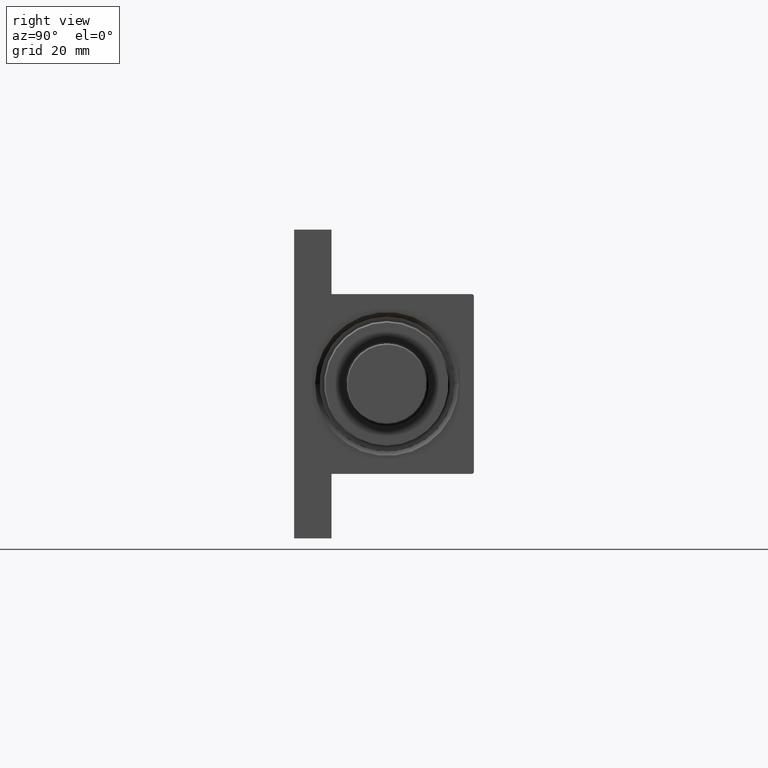
[diagram: clean part render]
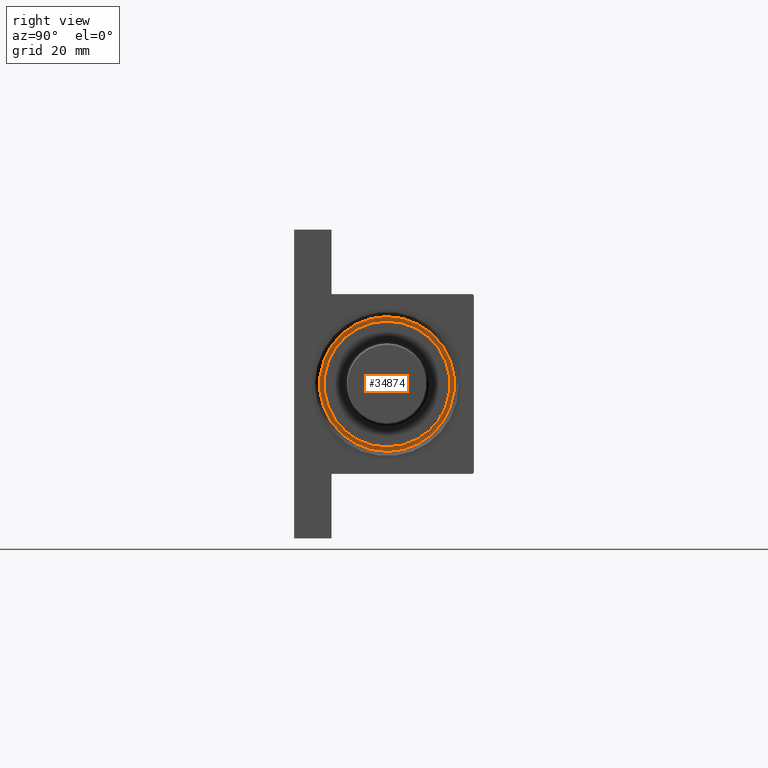
[diagram: same view with one face highlighted and labeled with its STEP entity id]
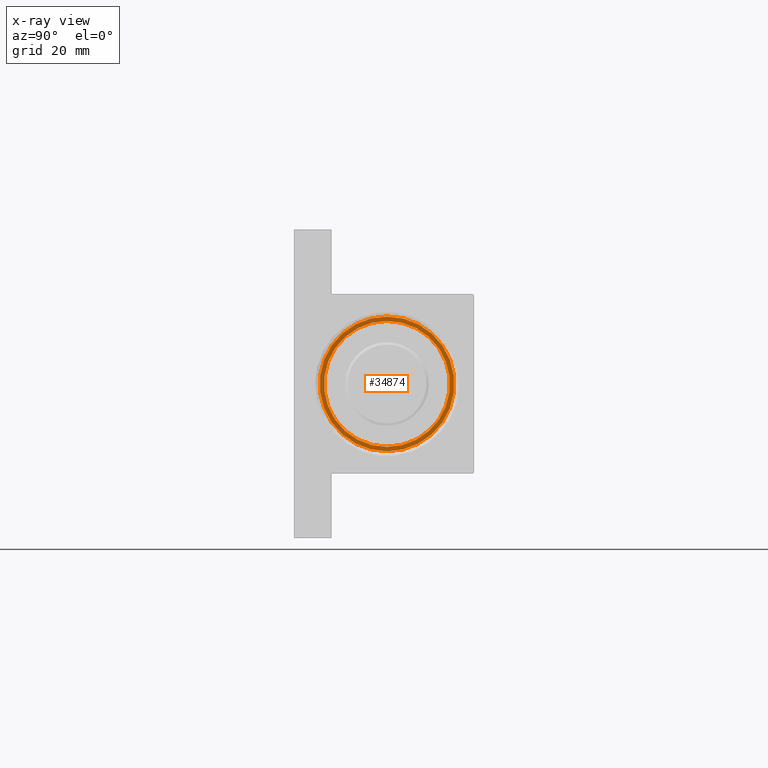
[diagram: x-ray of the same camera — body ghosted, the highlighted face saturated]
A machine part, right view. The second image highlights one B-rep face of the part: STEP entity #34874.
The next image is the same camera in x-ray: the body ghosted, the highlighted face saturated — about 0% of this face is hidden behind the body in this view.
In plain terms, the highlighted planar face has unit normal (1, 0, 0).
Its self-contained STEP definition (entity closure, byte-faithful):
#452 = CARTESIAN_POINT ( 'NONE',  ( 0.000000000000000000, 0.000000000000000000, 28.69999999999999929 ) ) ;
#985 = CARTESIAN_POINT ( 'NONE',  ( -21.00000000000000000, 0.000000000000000000, 28.69999999999999929 ) ) ;
#1737 = ORIENTED_EDGE ( 'NONE', *, *, #42461, .T. ) ;
#2629 = CARTESIAN_POINT ( 'NONE',  ( 0.000000000000000000, 0.000000000000000000, 28.69999999999999929 ) ) ;
#2882 = AXIS2_PLACEMENT_3D ( 'NONE', #21399, #31877, #14336 ) ;
#7621 = EDGE_LOOP ( 'NONE', ( #45964, #27838 ) ) ;
#9361 = ORIENTED_EDGE ( 'NONE', *, *, #44828, .T. ) ;
#10427 = DIRECTION ( 'NONE',  ( 1.000000000000000000, 0.000000000000000000, 0.000000000000000000 ) ) ;
#10578 = CARTESIAN_POINT ( 'NONE',  ( -22.50000000000000355, 0.000000000000000000, 28.69999999999999929 ) ) ;
#10938 = PLANE ( 'NONE',  #14475 ) ;
#11433 = CIRCLE ( 'NONE', #2882, 21.00000000000000000 ) ;
#11675 = CIRCLE ( 'NONE', #23985, 22.50000000000000355 ) ;
#12392 = CIRCLE ( 'NONE', #15470, 22.50000000000000355 ) ;
#12688 = CIRCLE ( 'NONE', #42944, 21.00000000000000000 ) ;
#12993 = CARTESIAN_POINT ( 'NONE',  ( 22.50000000000000355, 2.755455298081545172E-15, 28.69999999999999929 ) ) ;
#14336 = DIRECTION ( 'NONE',  ( 1.000000000000000000, 0.000000000000000000, 0.000000000000000000 ) ) ;
#14475 = AXIS2_PLACEMENT_3D ( 'NONE', #452, #47874, #43970 ) ;
#15470 = AXIS2_PLACEMENT_3D ( 'NONE', #39221, #42378, #27559 ) ;
#15959 = VERTEX_POINT ( 'NONE', #46819 ) ;
#21399 = CARTESIAN_POINT ( 'NONE',  ( 0.000000000000000000, 0.000000000000000000, 28.69999999999999929 ) ) ;
#23279 = EDGE_CURVE ( 'NONE', #15959, #46440, #12688, .T. ) ;
#23985 = AXIS2_PLACEMENT_3D ( 'NONE', #28493, #39429, #43311 ) ;
#25274 = FACE_BOUND ( 'NONE', #7621, .T. ) ;
#25486 = DIRECTION ( 'NONE',  ( 0.000000000000000000, 0.000000000000000000, 1.000000000000000000 ) ) ;
#27559 = DIRECTION ( 'NONE',  ( 1.000000000000000000, 0.000000000000000000, 0.000000000000000000 ) ) ;
#27838 = ORIENTED_EDGE ( 'NONE', *, *, #23279, .F. ) ;
#28493 = CARTESIAN_POINT ( 'NONE',  ( 0.000000000000000000, 0.000000000000000000, 28.69999999999999929 ) ) ;
#31729 = EDGE_LOOP ( 'NONE', ( #1737, #9361 ) ) ;
#31877 = DIRECTION ( 'NONE',  ( 0.000000000000000000, 0.000000000000000000, 1.000000000000000000 ) ) ;
#34874 = ADVANCED_FACE ( 'NONE', ( #25274, #44454 ), #10938, .T. ) ;
#39221 = CARTESIAN_POINT ( 'NONE',  ( 0.000000000000000000, 0.000000000000000000, 28.69999999999999929 ) ) ;
#39429 = DIRECTION ( 'NONE',  ( 0.000000000000000000, 0.000000000000000000, 1.000000000000000000 ) ) ;
#40620 = VERTEX_POINT ( 'NONE', #12993 ) ;
#42378 = DIRECTION ( 'NONE',  ( 0.000000000000000000, 0.000000000000000000, 1.000000000000000000 ) ) ;
#42461 = EDGE_CURVE ( 'NONE', #47635, #40620, #12392, .T. ) ;
#42944 = AXIS2_PLACEMENT_3D ( 'NONE', #2629, #25486, #10427 ) ;
#43311 = DIRECTION ( 'NONE',  ( 1.000000000000000000, 0.000000000000000000, 0.000000000000000000 ) ) ;
#43970 = DIRECTION ( 'NONE',  ( 1.000000000000000000, 0.000000000000000000, -0.000000000000000000 ) ) ;
#44454 = FACE_OUTER_BOUND ( 'NONE', #31729, .T. ) ;
#44828 = EDGE_CURVE ( 'NONE', #40620, #47635, #11675, .T. ) ;
#45964 = ORIENTED_EDGE ( 'NONE', *, *, #46712, .F. ) ;
#46440 = VERTEX_POINT ( 'NONE', #985 ) ;
#46712 = EDGE_CURVE ( 'NONE', #46440, #15959, #11433, .T. ) ;
#46819 = CARTESIAN_POINT ( 'NONE',  ( 21.00000000000000000, 2.571758278209441661E-15, 28.69999999999999929 ) ) ;
#47635 = VERTEX_POINT ( 'NONE', #10578 ) ;
#47874 = DIRECTION ( 'NONE',  ( 0.000000000000000000, 0.000000000000000000, 1.000000000000000000 ) ) ;